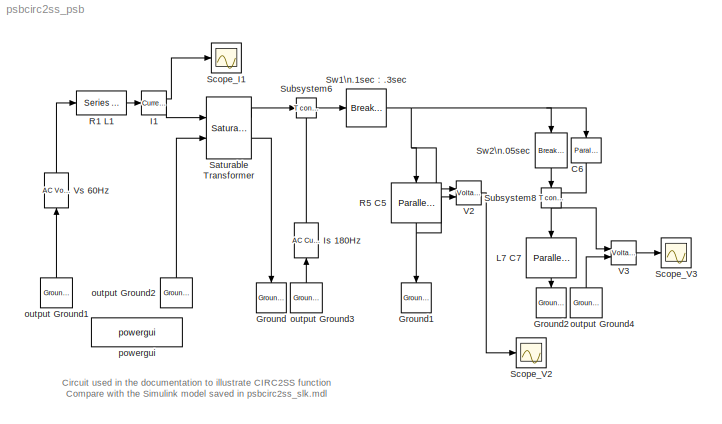
MODEL psbcirc2ss_psb
KIND model
BLOCK [Reference] C6  REF=powerlib2/Elements/Parallel RLC Branch
  PSBOutputType = 1
  Ports = [1, 1]
  SourceBlock = powerlib2/Elements/Parallel RLC Branch
  SourceType = Parallel RLC Branch
  Tag = PoWeRsYsTeMbLoCk
  a = inf
  b = inf
  c = 1e-09
  mesure = None
BLOCK [Reference] Ground  REF=powerlib2/Connectors/Ground (input)
  Ports = [1]
  SourceBlock = powerlib2/Connectors/Ground (input)
  SourceType = Ground
  Tag = PoWeRsYsTeMbLoCk
BLOCK [Reference] Ground1  REF=powerlib2/Connectors/Ground (input)
  Ports = [1]
  SourceBlock = powerlib2/Connectors/Ground (input)
  SourceType = Ground
  Tag = PoWeRsYsTeMbLoCk
BLOCK [Reference] Ground2  REF=powerlib2/Connectors/Ground (input)
  Ports = [1]
  SourceBlock = powerlib2/Connectors/Ground (input)
  SourceType = Ground
  Tag = PoWeRsYsTeMbLoCk
BLOCK [Reference] I1  REF=powerlib2/Measurements/Current Measurement
  OutputType = Magnitude
  PSBOutputType = 01
  PSBequivalent = 0
  PhasorSimulation = off
  Ports = [1, 2]
  SourceBlock = powerlib2/Measurements/Current Measurement
  SourceType = Current Measurement
  Tag = PoWeRsYsTeMmEaSuReMeNt
BLOCK [Reference] Is 180Hz  REF=powerlib2/Electrical\nSources/AC Current Source
  A = 2
  F = 180
  P = -30
  PSBOutputType = 1
  Ports = [1, 1]
  SourceBlock = powerlib2/Electrical\nSources/AC Current Source
  SourceType = AC Current Source
  Tag = PoWeRsYsTeMbLoCk
  mesure = None
  stime = 0
BLOCK [Reference] L7 C7  REF=powerlib2/Elements/Parallel RLC Branch
  PSBOutputType = 1
  Ports = [1, 1]
  SourceBlock = powerlib2/Elements/Parallel RLC Branch
  SourceType = Parallel RLC Branch
  Tag = PoWeRsYsTeMbLoCk
  a = inf
  b = 0.5
  c = 2e-06
  mesure = None
BLOCK [Reference] R1 L1  REF=powerlib2/Elements/Series RLC Branch
  PSBOutputType = 1
  Ports = [1, 1]
  SourceBlock = powerlib2/Elements/Series RLC Branch
  SourceType = Series RLC Branch
  Tag = PoWeRsYsTeMbLoCk
  a = 0.1
  b = 1e-03
  c = inf
  mesure = None
BLOCK [Reference] R5 C5  REF=powerlib2/Elements/Parallel RLC Branch
  PSBOutputType = 1
  Ports = [1, 1]
  SourceBlock = powerlib2/Elements/Parallel RLC Branch
  SourceType = Parallel RLC Branch
  Tag = PoWeRsYsTeMbLoCk
  a = 200
  b = inf
  c = 1e-06
  mesure = None
BLOCK [Reference] Saturable Transformer  REF=powerlib2/Elements/Saturable Transformer
  H = off
  Initialslope = +1
  PSBOutputType = 1111
  Ports = [2, 2]
  SourceBlock = powerlib2/Elements/Saturable Transformer
  SourceType = Saturable Transformer
  Tag = PoWeRsYsTeMbLoCk
  a = [10000 60]
  b = [100 0.05 1.5e-3*377]
  c = [200 0.05 0]
  d = [200 0.05 0]
  e = [0 0 ; 0.001 1.2 ; 1 1.3]
  f = [1000]
  matfile = 'hysteresis'
  mesure = None
  w3check = off
BLOCK [Scope] Scope_I1
  DataFormat = Array
  NumInputPorts = 1
  Ports = [1]
  TickLabels = on
  TimeRange = 0.2
  YMax = 10
  YMin = -15
BLOCK [Scope] Scope_V2
  DataFormat = Array
  NumInputPorts = 1
  Ports = [1]
  TickLabels = on
  YMax = 200
  YMin = -200
BLOCK [Scope] Scope_V3
  DataFormat = Array
  NumInputPorts = 1
  Ports = [1]
  TickLabels = on
  TimeRange = 0.2
  YMax = 400
  YMin = -400
BLOCK [Reference] Subsystem6  REF=powerlib2/Connectors/T connector
  PSBOutputType = 1
  Ports = [1, 1, 1]
  SourceBlock = powerlib2/Connectors/T connector
  SourceType = Bus Bar
  Tag = PoWeRsYsTeMbLoCk
BLOCK [Reference] Subsystem8  REF=powerlib2/Connectors/T connector
  PSBOutputType = 1
  Ports = [1, 1, 1]
  SourceBlock = powerlib2/Connectors/T connector
  SourceType = Bus Bar
  Tag = PoWeRsYsTeMbLoCk
BLOCK [Reference] Sw1\n.1sec : .3sec  REF=powerlib2/Elements/Breaker
  PSBOutputType = 1
  Ports = [1, 1]
  SourceBlock = powerlib2/Elements/Breaker
  SourceType = Breaker
  Tag = PoWeRsYsTeMbLoCk
  Ts = 0
  a = 0.01
  c = 1
  comext = off
  cs = 0
  mesure = None
  rs = inf
  times = [ .1  .13 ]
BLOCK [Reference] Sw2\n.05sec  REF=powerlib2/Elements/Breaker
  PSBOutputType = 1
  Ports = [1, 1]
  SourceBlock = powerlib2/Elements/Breaker
  SourceType = Breaker
  Tag = PoWeRsYsTeMbLoCk
  Ts = 0
  a = 0.1
  c = 0
  comext = off
  cs = 0
  mesure = None
  rs = inf
  times = [ .05 ]
BLOCK [Reference] V2  REF=powerlib2/Measurements/Voltage Measurement
  OutputType = Magnitude
  PSBOutputType = 0
  PSBequivalent = 0
  PhasorSimulation = off
  Ports = [2, 1]
  SourceBlock = powerlib2/Measurements/Voltage Measurement
  SourceType = Voltage Measurement
  Tag = PoWeRsYsTeMmEaSuReMeNt
BLOCK [Reference] V3  REF=powerlib2/Measurements/Voltage Measurement
  OutputType = Magnitude
  PSBOutputType = 0
  PSBequivalent = 1
  PhasorSimulation = off
  Ports = [2, 1]
  SourceBlock = powerlib2/Measurements/Voltage Measurement
  SourceType = Voltage Measurement
  Tag = PoWeRsYsTeMmEaSuReMeNt
BLOCK [Reference] Vs 60Hz  REF=powerlib2/Electrical\nSources/AC Voltage Source
  A = 100
  F = 60
  P = 0
  PSBOutputType = 1
  Ports = [1, 1]
  SourceBlock = powerlib2/Electrical\nSources/AC Voltage Source
  SourceType = AC Voltage Source
  Tag = PoWeRsYsTeMbLoCk
  mesure = None
  stime = 0
BLOCK [Reference] output Ground1  REF=powerlib2/Connectors/Ground (output)
  PSBOutputType = 1
  Ports = [0, 1]
  SourceBlock = powerlib2/Connectors/Ground (output)
  SourceType = Ground
  Tag = PoWeRsYsTeMbLoCk
BLOCK [Reference] output Ground2  REF=powerlib2/Connectors/Ground (output)
  PSBOutputType = 1
  Ports = [0, 1]
  SourceBlock = powerlib2/Connectors/Ground (output)
  SourceType = Ground
  Tag = PoWeRsYsTeMbLoCk
BLOCK [Reference] output Ground3  REF=powerlib2/Connectors/Ground (output)
  PSBOutputType = 1
  Ports = [0, 1]
  SourceBlock = powerlib2/Connectors/Ground (output)
  SourceType = Ground
  Tag = PoWeRsYsTeMbLoCk
BLOCK [Reference] output Ground4  REF=powerlib2/Connectors/Ground (output)
  PSBOutputType = 1
  Ports = [0, 1]
  SourceBlock = powerlib2/Connectors/Ground (output)
  SourceType = Ground
  Tag = PoWeRsYsTeMbLoCk
BLOCK [Reference] powergui  REF=powerlib2/powergui
  DisplayStyle = off
  Frange = logspace(0,3,50)
  FreqAxis = off
  MaxFrequency = 1000
  Ports = []
  RmsSteady = 1
  SourceBlock = powerlib2/powergui
  SourceType = PSB option menu block
  StartTime = 0.0
  Ts = 0
  Xlog = off
  Ylog = off
  ZoomFFT = on
  cycles = 1
  display = off
  echomessages = off
  frequency = 60
  frequencyindice = 1
  frequencyindicesteady = 1
  fundamental = 60
  methode = off
  save = off
  variable = ZData
ANNOTATION (root): Circuit used in the documentation to illustrate CIRC2SS function\nCompare with the Simulink model saved in psbcirc2ss_slk.mdl
LINE C6:1 -> Subsystem8:enable
LINE I1:1 -> Scope_I1:1
LINE I1:2 -> Saturable Transformer:1
LINE Is 180Hz:1 -> Subsystem6:enable
LINE L7 C7:1 -> Ground2:1
LINE R1 L1:1 -> I1:1
NET R5 C5:1 -> Ground1:1, V2:2
LINE Saturable Transformer:1 -> Subsystem6:1
LINE Saturable Transformer:2 -> Ground:1
LINE Subsystem6:1 -> Sw1\n.1sec : .3sec:1
NET Subsystem8:1 -> L7 C7:1, V3:1
NET Sw1\n.1sec : .3sec:1 -> C6:1, R5 C5:1, Sw2\n.05sec:1, V2:1
LINE Sw2\n.05sec:1 -> Subsystem8:1
LINE V2:1 -> Scope_V2:1
LINE V3:1 -> Scope_V3:1
LINE Vs 60Hz:1 -> R1 L1:1
LINE output Ground1:1 -> Vs 60Hz:1
LINE output Ground2:1 -> Saturable Transformer:2
LINE output Ground3:1 -> Is 180Hz:1
LINE output Ground4:1 -> V3:2
note: NET lines group one-source signal fan-out (src -> all destinations, sorted); 1:1 wires keep LINE
